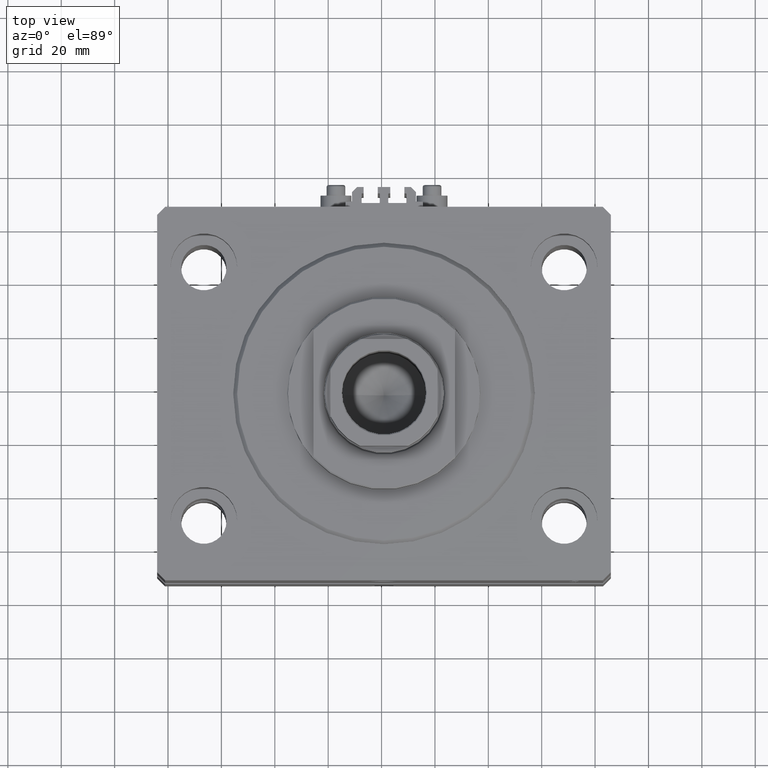
[diagram: clean part render]
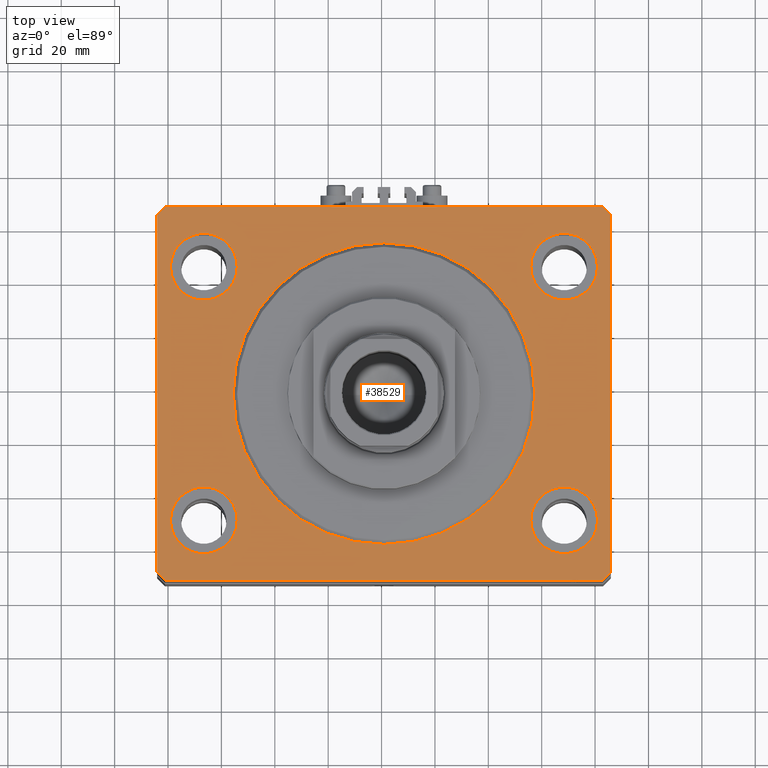
[diagram: same view with one face highlighted and labeled with its STEP entity id]
A machine part, top view. The second image highlights one B-rep face of the part: STEP entity #38529.
In plain terms, the highlighted planar face has unit normal (0, 0, 1).
Its self-contained STEP definition (entity closure, byte-faithful):
#574 = DIRECTION ( 'NONE',  ( 0.7071067811865474617, -0.7071067811865474617, 0.000000000000000000 ) ) ;
#722 = DIRECTION ( 'NONE',  ( 1.000000000000000000, 0.000000000000000000, 0.000000000000000000 ) ) ;
#935 = CIRCLE ( 'NONE', #12756, 12.49999999999999645 ) ;
#1025 = EDGE_CURVE ( 'NONE', #23226, #9838, #5200, .T. ) ;
#1398 = VERTEX_POINT ( 'NONE', #21730 ) ;
#1431 = CIRCLE ( 'NONE', #3839, 12.49999999999999645 ) ;
#1891 = EDGE_CURVE ( 'NONE', #28655, #8075, #34682, .T. ) ;
#2010 = DIRECTION ( 'NONE',  ( 0.000000000000000000, 0.000000000000000000, 1.000000000000000000 ) ) ;
#2316 = CARTESIAN_POINT ( 'NONE',  ( -67.50000000000000000, 47.50000000000000000, 0.000000000000000000 ) ) ;
#2540 = CARTESIAN_POINT ( 'NONE',  ( 67.50000000000000000, 47.50000000000001421, 0.000000000000000000 ) ) ;
#3040 = DIRECTION ( 'NONE',  ( 0.7071067811865459074, 0.7071067811865491270, 0.000000000000000000 ) ) ;
#3275 = DIRECTION ( 'NONE',  ( 1.000000000000000000, 0.000000000000000000, 0.000000000000000000 ) ) ;
#3389 = VECTOR ( 'NONE', #8158, 1000.000000000000000 ) ;
#3492 = ORIENTED_EDGE ( 'NONE', *, *, #42438, .F. ) ;
#3695 = VERTEX_POINT ( 'NONE', #41642 ) ;
#3839 = AXIS2_PLACEMENT_3D ( 'NONE', #4982, #39122, #5229 ) ;
#3901 = EDGE_CURVE ( 'NONE', #3695, #1398, #24169, .T. ) ;
#3962 = CARTESIAN_POINT ( 'NONE',  ( 85.00000000000055422, 66.99999999999997158, 0.000000000000000000 ) ) ;
#4426 = DIRECTION ( 'NONE',  ( 0.000000000000000000, 0.000000000000000000, 1.000000000000000000 ) ) ;
#4512 = EDGE_CURVE ( 'NONE', #8075, #48240, #6771, .T. ) ;
#4525 = LINE ( 'NONE', #19869, #44392 ) ;
#4982 = CARTESIAN_POINT ( 'NONE',  ( 67.50000000000000000, -47.50000000000000000, 0.000000000000000000 ) ) ;
#5200 = CIRCLE ( 'NONE', #30509, 12.49999999999999645 ) ;
#5226 = EDGE_CURVE ( 'NONE', #17807, #33012, #16275, .T. ) ;
#5229 = DIRECTION ( 'NONE',  ( 1.000000000000000000, 0.000000000000000000, 0.000000000000000000 ) ) ;
#5237 = AXIS2_PLACEMENT_3D ( 'NONE', #33134, #40060, #29185 ) ;
#5573 = CIRCLE ( 'NONE', #11091, 12.49999999999999645 ) ;
#5946 = LINE ( 'NONE', #36361, #22313 ) ;
#6186 = ORIENTED_EDGE ( 'NONE', *, *, #38779, .T. ) ;
#6243 = CARTESIAN_POINT ( 'NONE',  ( 0.000000000000000000, 0.000000000000000000, 0.000000000000000000 ) ) ;
#6254 = CARTESIAN_POINT ( 'NONE',  ( 82.00000000000059686, 70.00000000000002842, 0.000000000000000000 ) ) ;
#6754 = VECTOR ( 'NONE', #574, 1000.000000000000114 ) ;
#6771 = LINE ( 'NONE', #42128, #6754 ) ;
#7039 = EDGE_LOOP ( 'NONE', ( #41103, #21102 ) ) ;
#8075 = VERTEX_POINT ( 'NONE', #32111 ) ;
#8158 = DIRECTION ( 'NONE',  ( -0.7071067811865344721, 0.7071067811865606734, 0.000000000000000000 ) ) ;
#8488 = ORIENTED_EDGE ( 'NONE', *, *, #21728, .T. ) ;
#8810 = CARTESIAN_POINT ( 'NONE',  ( -80.00000000000000000, -47.50000000000000000, 0.000000000000000000 ) ) ;
#9095 = LINE ( 'NONE', #27664, #34098 ) ;
#9744 = CARTESIAN_POINT ( 'NONE',  ( -82.00000000000001421, -70.00000000000000000, 0.000000000000000000 ) ) ;
#9838 = VERTEX_POINT ( 'NONE', #8810 ) ;
#9956 = FACE_BOUND ( 'NONE', #41552, .T. ) ;
#9988 = LINE ( 'NONE', #9744, #45769 ) ;
#10638 = CARTESIAN_POINT ( 'NONE',  ( -56.50000000000000711, 6.919254415182546126E-15, 0.000000000000000000 ) ) ;
#11091 = AXIS2_PLACEMENT_3D ( 'NONE', #28726, #21295, #39844 ) ;
#11526 = AXIS2_PLACEMENT_3D ( 'NONE', #43824, #48027, #33428 ) ;
#11794 = ORIENTED_EDGE ( 'NONE', *, *, #37848, .T. ) ;
#12335 = VERTEX_POINT ( 'NONE', #14506 ) ;
#12565 = CARTESIAN_POINT ( 'NONE',  ( -80.00000000000000000, 47.50000000000000000, 0.000000000000000000 ) ) ;
#12756 = AXIS2_PLACEMENT_3D ( 'NONE', #26004, #21806, #22783 ) ;
#13676 = FACE_BOUND ( 'NONE', #27080, .T. ) ;
#13922 = FACE_BOUND ( 'NONE', #18672, .T. ) ;
#14115 = CARTESIAN_POINT ( 'NONE',  ( -67.50000000000000000, -47.50000000000000000, 0.000000000000000000 ) ) ;
#14506 = CARTESIAN_POINT ( 'NONE',  ( 85.00000000000055422, 66.99999999999997158, 0.000000000000000000 ) ) ;
#15223 = EDGE_CURVE ( 'NONE', #48240, #22287, #9988, .T. ) ;
#15619 = ORIENTED_EDGE ( 'NONE', *, *, #5226, .F. ) ;
#15968 = AXIS2_PLACEMENT_3D ( 'NONE', #16288, #4426, #722 ) ;
#16275 = CIRCLE ( 'NONE', #5237, 12.49999999999999645 ) ;
#16288 = CARTESIAN_POINT ( 'NONE',  ( 0.000000000000000000, 0.000000000000000000, 0.000000000000000000 ) ) ;
#16975 = VERTEX_POINT ( 'NONE', #12565 ) ;
#17014 = DIRECTION ( 'NONE',  ( 3.935492064902608811E-15, 1.000000000000000000, 0.000000000000000000 ) ) ;
#17097 = DIRECTION ( 'NONE',  ( 1.000000000000000000, 0.000000000000000000, 0.000000000000000000 ) ) ;
#17157 = DIRECTION ( 'NONE',  ( 0.000000000000000000, 0.000000000000000000, 1.000000000000000000 ) ) ;
#17366 = ORIENTED_EDGE ( 'NONE', *, *, #24655, .F. ) ;
#17385 = FACE_BOUND ( 'NONE', #37155, .T. ) ;
#17687 = VECTOR ( 'NONE', #3040, 1000.000000000000000 ) ;
#17807 = VERTEX_POINT ( 'NONE', #20981 ) ;
#18057 = DIRECTION ( 'NONE',  ( -1.000000000000000000, -1.692413147294439807E-16, 0.000000000000000000 ) ) ;
#18123 = FACE_OUTER_BOUND ( 'NONE', #41052, .T. ) ;
#18131 = CARTESIAN_POINT ( 'NONE',  ( 82.00000000000001421, -70.00000000000000000, 0.000000000000000000 ) ) ;
#18672 = EDGE_LOOP ( 'NONE', ( #19067, #15619 ) ) ;
#18855 = VERTEX_POINT ( 'NONE', #10638 ) ;
#18868 = EDGE_CURVE ( 'NONE', #9838, #23226, #5573, .T. ) ;
#19067 = ORIENTED_EDGE ( 'NONE', *, *, #29709, .F. ) ;
#19095 = ORIENTED_EDGE ( 'NONE', *, *, #15223, .T. ) ;
#19123 = CARTESIAN_POINT ( 'NONE',  ( -85.00000000000000000, 67.00000000000000000, 0.000000000000000000 ) ) ;
#19217 = AXIS2_PLACEMENT_3D ( 'NONE', #45709, #46436, #36019 ) ;
#19869 = CARTESIAN_POINT ( 'NONE',  ( -82.00000000000000000, 70.00000000000000000, 0.000000000000000000 ) ) ;
#19941 = AXIS2_PLACEMENT_3D ( 'NONE', #6243, #21351, #33214 ) ;
#20555 = CARTESIAN_POINT ( 'NONE',  ( 80.00000000000000000, -47.50000000000000000, 0.000000000000000000 ) ) ;
#20919 = VECTOR ( 'NONE', #30754, 1000.000000000000000 ) ;
#20981 = CARTESIAN_POINT ( 'NONE',  ( 55.00000000000000711, -47.50000000000000000, 0.000000000000000000 ) ) ;
#21102 = ORIENTED_EDGE ( 'NONE', *, *, #38555, .F. ) ;
#21295 = DIRECTION ( 'NONE',  ( 0.000000000000000000, 0.000000000000000000, 1.000000000000000000 ) ) ;
#21340 = ORIENTED_EDGE ( 'NONE', *, *, #24262, .T. ) ;
#21351 = DIRECTION ( 'NONE',  ( 0.000000000000000000, 0.000000000000000000, 1.000000000000000000 ) ) ;
#21728 = EDGE_CURVE ( 'NONE', #42088, #28655, #4525, .T. ) ;
#21730 = CARTESIAN_POINT ( 'NONE',  ( 55.00000000000000711, 47.50000000000001421, 0.000000000000000000 ) ) ;
#21806 = DIRECTION ( 'NONE',  ( 0.000000000000000000, 0.000000000000000000, 1.000000000000000000 ) ) ;
#22287 = VERTEX_POINT ( 'NONE', #25897 ) ;
#22313 = VECTOR ( 'NONE', #18057, 1000.000000000000000 ) ;
#22649 = ORIENTED_EDGE ( 'NONE', *, *, #41155, .F. ) ;
#22775 = LINE ( 'NONE', #3962, #3389 ) ;
#22783 = DIRECTION ( 'NONE',  ( 1.000000000000000000, 0.000000000000000000, 0.000000000000000000 ) ) ;
#22995 = VERTEX_POINT ( 'NONE', #6254 ) ;
#23226 = VERTEX_POINT ( 'NONE', #24772 ) ;
#23729 = VERTEX_POINT ( 'NONE', #38702 ) ;
#23848 = EDGE_CURVE ( 'NONE', #16975, #45136, #42087, .T. ) ;
#24169 = CIRCLE ( 'NONE', #11526, 12.49999999999999645 ) ;
#24262 = EDGE_CURVE ( 'NONE', #12335, #22995, #22775, .T. ) ;
#24497 = CARTESIAN_POINT ( 'NONE',  ( -82.00000000000001421, -70.00000000000000000, 0.000000000000000000 ) ) ;
#24655 = EDGE_CURVE ( 'NONE', #18855, #25495, #38179, .T. ) ;
#24772 = CARTESIAN_POINT ( 'NONE',  ( -55.00000000000000711, -47.50000000000000000, 0.000000000000000000 ) ) ;
#25056 = PLANE ( 'NONE',  #19941 ) ;
#25495 = VERTEX_POINT ( 'NONE', #32799 ) ;
#25830 = DIRECTION ( 'NONE',  ( 1.000000000000000000, 0.000000000000000000, 0.000000000000000000 ) ) ;
#25897 = CARTESIAN_POINT ( 'NONE',  ( 82.00000000000001421, -70.00000000000000000, 0.000000000000000000 ) ) ;
#25964 = EDGE_CURVE ( 'NONE', #22287, #23729, #41621, .T. ) ;
#26004 = CARTESIAN_POINT ( 'NONE',  ( -67.50000000000000000, 47.50000000000000000, 0.000000000000000000 ) ) ;
#26226 = CIRCLE ( 'NONE', #15968, 56.50000000000000711 ) ;
#27080 = EDGE_LOOP ( 'NONE', ( #22649, #31094 ) ) ;
#27664 = CARTESIAN_POINT ( 'NONE',  ( 85.00000000000001421, -66.99999999999998579, 0.000000000000000000 ) ) ;
#28655 = VERTEX_POINT ( 'NONE', #48556 ) ;
#28726 = CARTESIAN_POINT ( 'NONE',  ( -67.50000000000000000, -47.50000000000000000, 0.000000000000000000 ) ) ;
#29019 = DIRECTION ( 'NONE',  ( 0.000000000000000000, 0.000000000000000000, 1.000000000000000000 ) ) ;
#29185 = DIRECTION ( 'NONE',  ( 1.000000000000000000, 0.000000000000000000, 0.000000000000000000 ) ) ;
#29413 = CIRCLE ( 'NONE', #34935, 12.49999999999999645 ) ;
#29709 = EDGE_CURVE ( 'NONE', #33012, #17807, #1431, .T. ) ;
#30509 = AXIS2_PLACEMENT_3D ( 'NONE', #14115, #2010, #17097 ) ;
#30754 = DIRECTION ( 'NONE',  ( -1.035655806553317576E-16, -1.000000000000000000, 0.000000000000000000 ) ) ;
#31094 = ORIENTED_EDGE ( 'NONE', *, *, #23848, .F. ) ;
#31873 = ORIENTED_EDGE ( 'NONE', *, *, #1025, .F. ) ;
#32022 = DIRECTION ( 'NONE',  ( 1.000000000000000000, 0.000000000000000000, 0.000000000000000000 ) ) ;
#32111 = CARTESIAN_POINT ( 'NONE',  ( -85.00000000000001421, -67.00000000000000000, 0.000000000000000000 ) ) ;
#32487 = FACE_BOUND ( 'NONE', #7039, .T. ) ;
#32799 = CARTESIAN_POINT ( 'NONE',  ( 56.50000000000000711, 0.000000000000000000, 0.000000000000000000 ) ) ;
#33012 = VERTEX_POINT ( 'NONE', #20555 ) ;
#33134 = CARTESIAN_POINT ( 'NONE',  ( 67.50000000000000000, -47.50000000000000000, 0.000000000000000000 ) ) ;
#33210 = ORIENTED_EDGE ( 'NONE', *, *, #25964, .T. ) ;
#33214 = DIRECTION ( 'NONE',  ( 1.000000000000000000, 0.000000000000000000, -0.000000000000000000 ) ) ;
#33428 = DIRECTION ( 'NONE',  ( 1.000000000000000000, 0.000000000000000000, 0.000000000000000000 ) ) ;
#33584 = ORIENTED_EDGE ( 'NONE', *, *, #4512, .T. ) ;
#34098 = VECTOR ( 'NONE', #17014, 1000.000000000000000 ) ;
#34682 = LINE ( 'NONE', #19123, #20919 ) ;
#34935 = AXIS2_PLACEMENT_3D ( 'NONE', #2540, #29019, #3275 ) ;
#34983 = AXIS2_PLACEMENT_3D ( 'NONE', #2316, #17157, #32022 ) ;
#35427 = DIRECTION ( 'NONE',  ( -0.7071067811865474617, -0.7071067811865474617, 0.000000000000000000 ) ) ;
#36019 = DIRECTION ( 'NONE',  ( 1.000000000000000000, 0.000000000000000000, 0.000000000000000000 ) ) ;
#36361 = CARTESIAN_POINT ( 'NONE',  ( 82.00000000000059686, 70.00000000000002842, 0.000000000000000000 ) ) ;
#37155 = EDGE_LOOP ( 'NONE', ( #31873, #48800 ) ) ;
#37848 = EDGE_CURVE ( 'NONE', #23729, #12335, #9095, .T. ) ;
#38179 = CIRCLE ( 'NONE', #19217, 56.50000000000000711 ) ;
#38529 = ADVANCED_FACE ( 'NONE', ( #17385, #13922, #32487, #13676, #9956, #18123 ), #25056, .T. ) ;
#38555 = EDGE_CURVE ( 'NONE', #1398, #3695, #29413, .T. ) ;
#38702 = CARTESIAN_POINT ( 'NONE',  ( 85.00000000000001421, -66.99999999999998579, 0.000000000000000000 ) ) ;
#38779 = EDGE_CURVE ( 'NONE', #22995, #42088, #5946, .T. ) ;
#39122 = DIRECTION ( 'NONE',  ( 0.000000000000000000, 0.000000000000000000, 1.000000000000000000 ) ) ;
#39779 = ORIENTED_EDGE ( 'NONE', *, *, #1891, .T. ) ;
#39844 = DIRECTION ( 'NONE',  ( 1.000000000000000000, 0.000000000000000000, 0.000000000000000000 ) ) ;
#39902 = CARTESIAN_POINT ( 'NONE',  ( -82.00000000000000000, 70.00000000000000000, 0.000000000000000000 ) ) ;
#40060 = DIRECTION ( 'NONE',  ( 0.000000000000000000, 0.000000000000000000, 1.000000000000000000 ) ) ;
#40108 = CARTESIAN_POINT ( 'NONE',  ( -55.00000000000000711, 47.50000000000000000, 0.000000000000000000 ) ) ;
#41052 = EDGE_LOOP ( 'NONE', ( #6186, #8488, #39779, #33584, #19095, #33210, #11794, #21340 ) ) ;
#41103 = ORIENTED_EDGE ( 'NONE', *, *, #3901, .F. ) ;
#41155 = EDGE_CURVE ( 'NONE', #45136, #16975, #935, .T. ) ;
#41552 = EDGE_LOOP ( 'NONE', ( #3492, #17366 ) ) ;
#41621 = LINE ( 'NONE', #18131, #17687 ) ;
#41642 = CARTESIAN_POINT ( 'NONE',  ( 80.00000000000000000, 47.50000000000001421, 0.000000000000000000 ) ) ;
#42087 = CIRCLE ( 'NONE', #34983, 12.49999999999999645 ) ;
#42088 = VERTEX_POINT ( 'NONE', #39902 ) ;
#42128 = CARTESIAN_POINT ( 'NONE',  ( -85.00000000000001421, -67.00000000000000000, 0.000000000000000000 ) ) ;
#42438 = EDGE_CURVE ( 'NONE', #25495, #18855, #26226, .T. ) ;
#43824 = CARTESIAN_POINT ( 'NONE',  ( 67.50000000000000000, 47.50000000000001421, 0.000000000000000000 ) ) ;
#44392 = VECTOR ( 'NONE', #35427, 1000.000000000000114 ) ;
#45136 = VERTEX_POINT ( 'NONE', #40108 ) ;
#45709 = CARTESIAN_POINT ( 'NONE',  ( 0.000000000000000000, 0.000000000000000000, 0.000000000000000000 ) ) ;
#45769 = VECTOR ( 'NONE', #25830, 1000.000000000000000 ) ;
#46436 = DIRECTION ( 'NONE',  ( 0.000000000000000000, 0.000000000000000000, 1.000000000000000000 ) ) ;
#48027 = DIRECTION ( 'NONE',  ( 0.000000000000000000, 0.000000000000000000, 1.000000000000000000 ) ) ;
#48240 = VERTEX_POINT ( 'NONE', #24497 ) ;
#48556 = CARTESIAN_POINT ( 'NONE',  ( -85.00000000000000000, 67.00000000000000000, 0.000000000000000000 ) ) ;
#48800 = ORIENTED_EDGE ( 'NONE', *, *, #18868, .F. ) ;